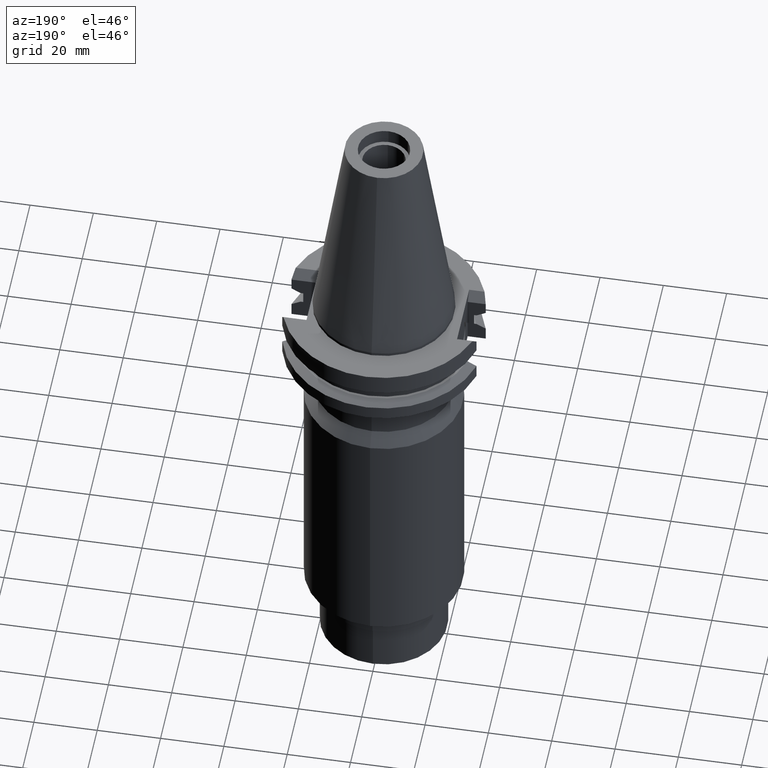
[diagram: clean part render]
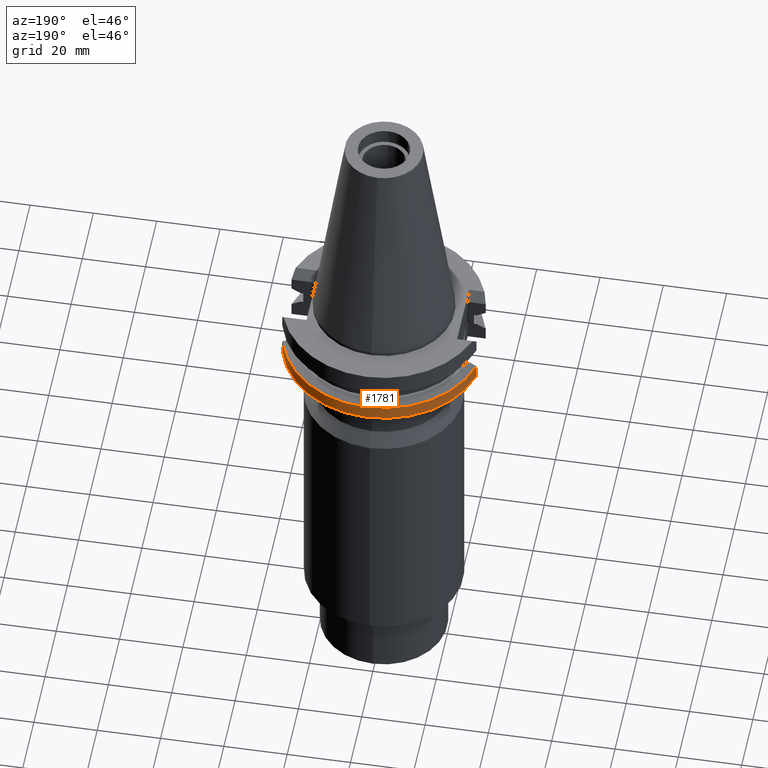
[diagram: same view with one face highlighted and labeled with its STEP entity id]
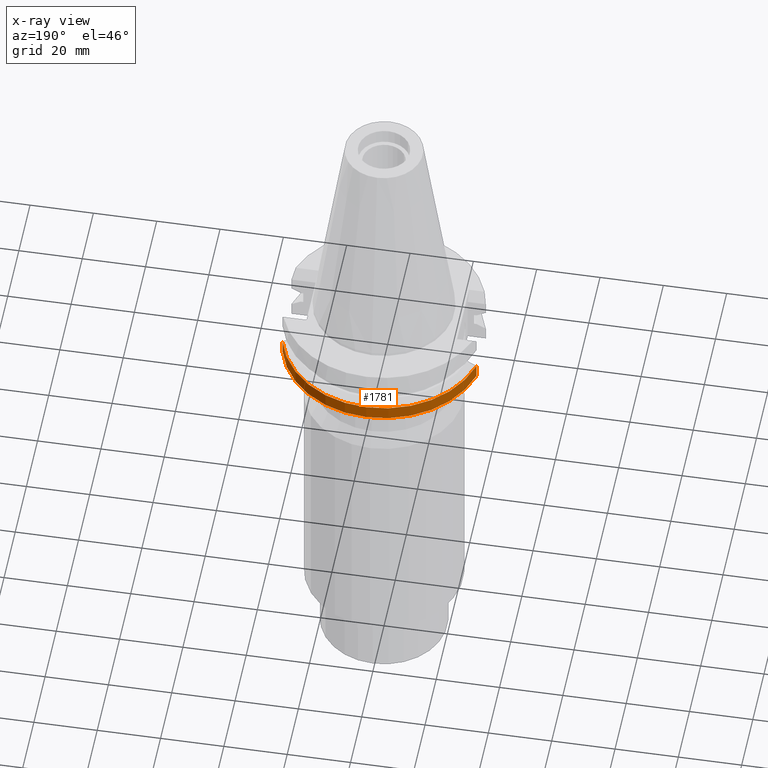
[diagram: x-ray of the same camera — body ghosted, the highlighted face saturated]
A machine part, auxiliary view. The second image highlights one B-rep face of the part: STEP entity #1781.
The next image is the same camera in x-ray: the body ghosted, the highlighted face saturated — about 0% of this face is hidden behind the body in this view.
In plain terms, the highlighted cylindrical surface (partial cylindrical patch) has radius 31.75 mm, axis along (0, 0, -1).
Its self-contained STEP definition (entity closure, byte-faithful):
#205=CARTESIAN_POINT('',(0.E0,2.188841840286E-14,-1.905E1));
#206=DIRECTION('',(0.E0,0.E0,1.E0));
#207=DIRECTION('',(9.661575315241E-1,2.579527559055E-1,0.E0));
#208=AXIS2_PLACEMENT_3D('',#205,#206,#207);
#213=CARTESIAN_POINT('',(0.E0,2.188841840286E-14,-1.905E1));
#214=DIRECTION('',(0.E0,0.E0,1.E0));
#215=DIRECTION('',(0.E0,1.E0,0.E0));
#216=AXIS2_PLACEMENT_3D('',#213,#214,#215);
#403=DIRECTION('',(7.635412401829E-9,-2.859774178489E-8,1.E0));
#404=VECTOR('',#403,4.396334354415E0);
#405=CARTESIAN_POINT('',(3.067550162589E1,8.19E0,-1.905E1));
#406=LINE('',#405,#404);
#410=DIRECTION('',(-3.682762628625E-8,-1.379377892796E-7,-1.E0));
#411=VECTOR('',#410,4.396327811835E0);
#412=CARTESIAN_POINT('',(-3.067550146398E1,8.190000606420E0,-1.465367218817E1));
#413=LINE('',#412,#411);
#437=CARTESIAN_POINT('',(0.E0,1.055026073065E-14,-1.465366676908E1));
#438=DIRECTION('',(0.E0,0.E0,-1.E0));
#439=DIRECTION('',(-9.661575315241E-1,2.579527559055E-1,0.E0));
#440=AXIS2_PLACEMENT_3D('',#437,#438,#439);
#445=CARTESIAN_POINT('',(0.E0,1.055026073065E-14,-1.465366676908E1));
#446=DIRECTION('',(0.E0,0.E0,-1.E0));
#447=DIRECTION('',(0.E0,1.E0,0.E0));
#448=AXIS2_PLACEMENT_3D('',#445,#446,#447);
#1358=CARTESIAN_POINT('',(3.067550162589E1,8.19E0,-1.905E1));
#1359=VERTEX_POINT('',#1358);
#1360=CARTESIAN_POINT('',(-2.339637701084E-14,3.175E1,-1.905E1));
#1361=CARTESIAN_POINT('',(-3.067550162589E1,8.19E0,-1.905E1));
#1362=VERTEX_POINT('',#1360);
#1363=VERTEX_POINT('',#1361);
#1398=CARTESIAN_POINT('',(3.067550165946E1,8.189999874275E0,-1.465366564559E1));
#1399=VERTEX_POINT('',#1398);
#1400=CARTESIAN_POINT('',(-3.067550162589E1,8.190000000001E0,
-1.465366676908E1));
#1401=CARTESIAN_POINT('',(0.E0,3.175E1,-1.465366676908E1));
#1402=VERTEX_POINT('',#1400);
#1403=VERTEX_POINT('',#1401);
#1766=CARTESIAN_POINT('',(0.E0,2.188841840286E-14,7.87325E1));
#1767=DIRECTION('',(0.E0,0.E0,-1.E0));
#1768=DIRECTION('',(0.E0,-1.E0,0.E0));
#1769=AXIS2_PLACEMENT_3D('',#1766,#1767,#1768);
#1770=CYLINDRICAL_SURFACE('',#1769,3.175E1);
#1771=ORIENTED_EDGE('',*,*,#1667,.T.);
#1773=ORIENTED_EDGE('',*,*,#1772,.F.);
#1775=ORIENTED_EDGE('',*,*,#1774,.F.);
#1776=ORIENTED_EDGE('',*,*,#1748,.T.);
#1777=ORIENTED_EDGE('',*,*,#1623,.F.);
#1778=ORIENTED_EDGE('',*,*,#1621,.F.);
#1779=EDGE_LOOP('',(#1771,#1773,#1775,#1776,#1777,#1778));
#1780=FACE_OUTER_BOUND('',#1779,.F.);
#209=CIRCLE('',#208,3.175E1);
#217=CIRCLE('',#216,3.175E1);
#441=CIRCLE('',#440,3.175E1);
#449=CIRCLE('',#448,3.175E1);
#1621=EDGE_CURVE('',#1359,#1362,#209,.T.);
#1623=EDGE_CURVE('',#1362,#1363,#217,.T.);
#1667=EDGE_CURVE('',#1359,#1399,#406,.T.);
#1748=EDGE_CURVE('',#1402,#1363,#413,.T.);
#1772=EDGE_CURVE('',#1403,#1399,#449,.T.);
#1774=EDGE_CURVE('',#1402,#1403,#441,.T.);
#1781=ADVANCED_FACE('',(#1780),#1770,.T.);